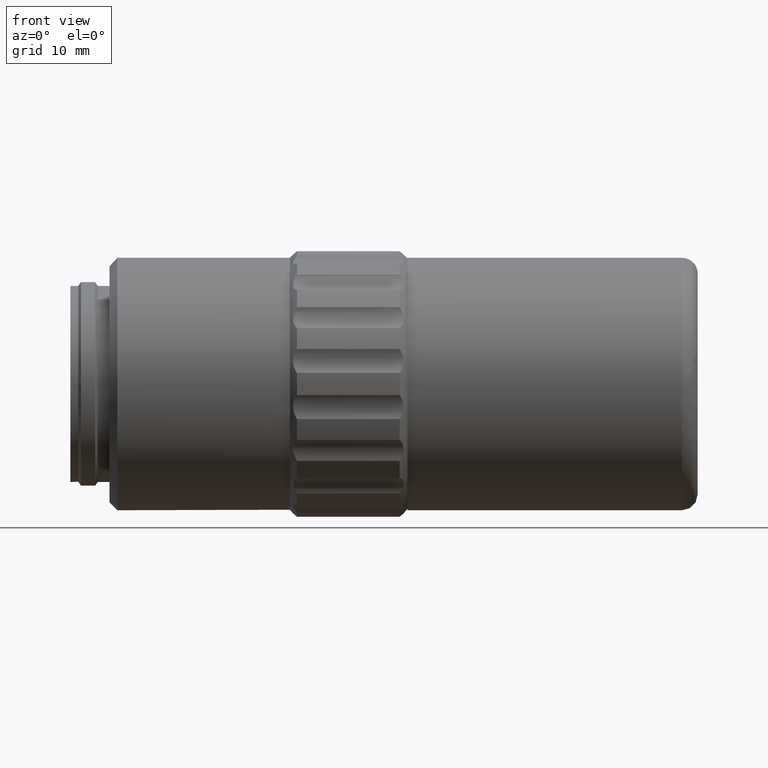
[diagram: clean part render]
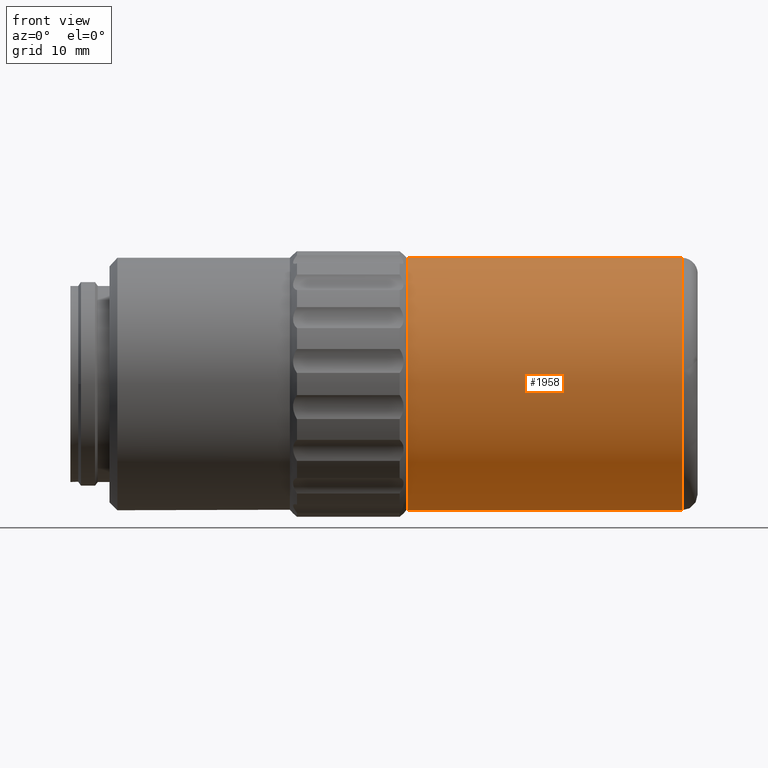
[diagram: same view with one face highlighted and labeled with its STEP entity id]
A machine part, front view. The second image highlights one B-rep face of the part: STEP entity #1958.
In plain terms, the highlighted cylindrical surface (bore or boss wall) has radius 16.1 mm, axis along (-1, 0, 0).
Its self-contained STEP definition (entity closure, byte-faithful):
#20 = ORIENTED_EDGE ( 'NONE', *, *, #371, .T. ) ;
#49 = DIRECTION ( 'NONE',  ( 0.000000000000000000, 0.000000000000000000, 1.000000000000000000 ) ) ;
#54 = CIRCLE ( 'NONE', #1962, 16.10000000000000142 ) ;
#118 = CIRCLE ( 'NONE', #978, 16.10000000000000142 ) ;
#371 = EDGE_CURVE ( 'NONE', #1034, #1034, #54, .T. ) ;
#381 = DIRECTION ( 'NONE',  ( 1.000000000000000000, -0.000000000000000000, -0.000000000000000000 ) ) ;
#407 = EDGE_CURVE ( 'NONE', #2024, #2024, #118, .T. ) ;
#451 = CYLINDRICAL_SURFACE ( 'NONE', #1861, 16.10000000000000142 ) ;
#462 = EDGE_LOOP ( 'NONE', ( #20 ) ) ;
#515 = ORIENTED_EDGE ( 'NONE', *, *, #407, .T. ) ;
#534 = DIRECTION ( 'NONE',  ( 0.000000000000000000, 0.000000000000000000, 1.000000000000000000 ) ) ;
#541 = DIRECTION ( 'NONE',  ( 0.000000000000000000, 0.000000000000000000, 1.000000000000000000 ) ) ;
#759 = CARTESIAN_POINT ( 'NONE',  ( 44.14685803487879667, 46.02096199999999726, 0.000000000000000000 ) ) ;
#852 = CARTESIAN_POINT ( 'NONE',  ( 33.44685803487879383, 46.02096199999999726, 0.000000000000000000 ) ) ;
#894 = CARTESIAN_POINT ( 'NONE',  ( 68.44685803487878673, 46.02096199999999726, 16.10000000000000142 ) ) ;
#927 = EDGE_LOOP ( 'NONE', ( #515 ) ) ;
#978 = AXIS2_PLACEMENT_3D ( 'NONE', #1990, #1174, #534 ) ;
#1034 = VERTEX_POINT ( 'NONE', #1525 ) ;
#1174 = DIRECTION ( 'NONE',  ( -1.000000000000000000, 0.000000000000000000, 0.000000000000000000 ) ) ;
#1525 = CARTESIAN_POINT ( 'NONE',  ( 33.44685803487879383, 46.02096199999999726, 16.10000000000000142 ) ) ;
#1749 = DIRECTION ( 'NONE',  ( -1.000000000000000000, 0.000000000000000000, 0.000000000000000000 ) ) ;
#1861 = AXIS2_PLACEMENT_3D ( 'NONE', #759, #1749, #541 ) ;
#1910 = FACE_OUTER_BOUND ( 'NONE', #462, .T. ) ;
#1958 = ADVANCED_FACE ( 'NONE', ( #2100, #1910 ), #451, .T. ) ;
#1962 = AXIS2_PLACEMENT_3D ( 'NONE', #852, #381, #49 ) ;
#1990 = CARTESIAN_POINT ( 'NONE',  ( 68.44685803487878673, 46.02096199999999726, 0.000000000000000000 ) ) ;
#2024 = VERTEX_POINT ( 'NONE', #894 ) ;
#2100 = FACE_OUTER_BOUND ( 'NONE', #927, .T. ) ;